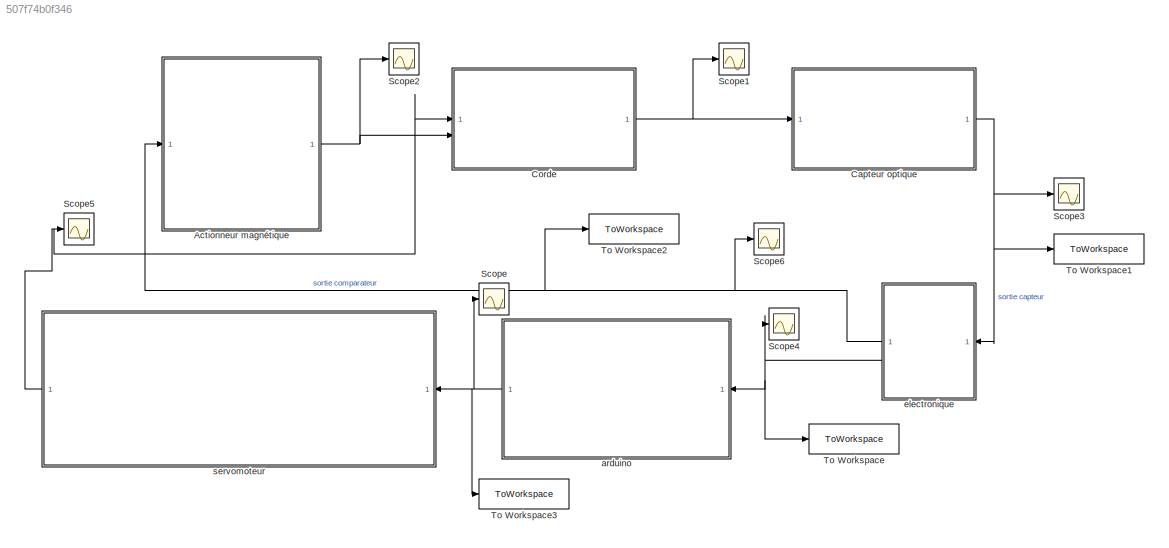
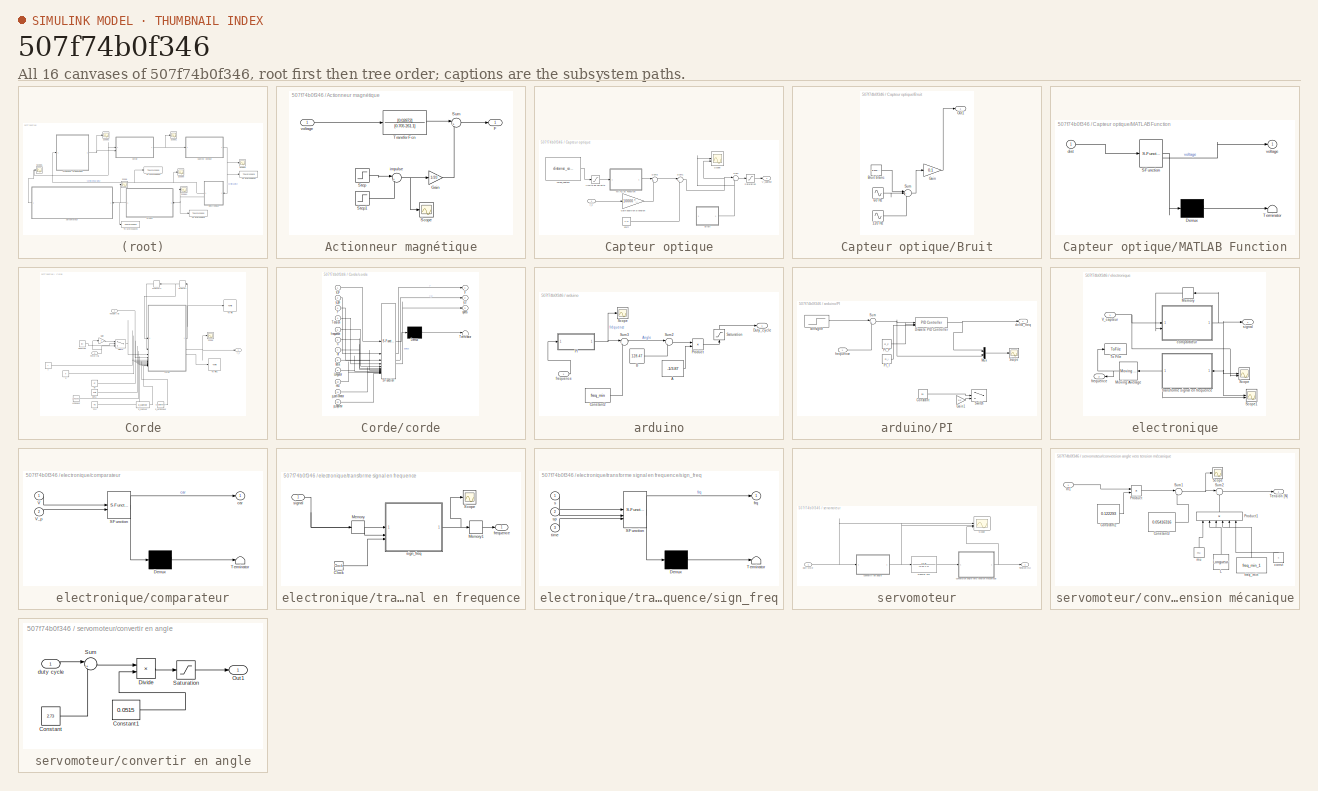
[diagram: thumbnail index - all 16 canvases of the model, root first then tree order]
MODEL slx_507f74b0f346
KIND model
CONFIG AbsTol = auto
CONFIG EnableMultiTasking = off
CONFIG FixedStep = dt
CONFIG MaxStep = auto
CONFIG MinStep = auto
CONFIG RelTol = 1e-3
CONFIG SampleTimeConstraint = Unconstrained
CONFIG SolverName = ode4
CONFIG StartTime = 0.0
CONFIG StopTime = 10
WORKSPACE source: external: MATLAB File  (data not in archive)
BLOCK [SubSystem] Actionneur magnétique
BLOCK [Outport] Actionneur magnétique/F
BLOCK [Gain] Actionneur magnétique/Gain
  Gain = 1/20
BLOCK [Scope] Actionneur magnétique/Scope
  Floating = off
  NumInputPorts = 1
  ScopeSpecificationString = Simulink.scopes.TimeScopeBlockCfg('CurrentConfiguration', extmgr.ConfigurationSet(extmgr.Configuration('Core','General UI',true),extmgr.Configuration('Core','Source UI',true),extmgr.Configuration('Sources','WiredSimulink',true,'DataLoggingVariableName','ScopeData2'),extmgr.Configuration('Visuals','Time Domain',true,'SerializedDisplays',{struct('MinYLimReal','-0.125','MaxYLimReal','1.125','YLabelRe...<+1354ch>
BLOCK [Step] Actionneur magnétique/Step
  SampleTime = 0
  Time = 3*dt
BLOCK [Step] Actionneur magnétique/Step1
  After = -1
  SampleTime = 0
  Time = 6*dt
BLOCK [Sum] Actionneur magnétique/Sum
  Inputs = |++
BLOCK [TransferFcn] Actionneur magnétique/Transfer Fcn
  Denominator = [0.705 261.1]
  Numerator = [0.02872]
BLOCK [Sum] Actionneur magnétique/impulse
  Inputs = |++
BLOCK [Inport] Actionneur magnétique/voltage
BLOCK [SubSystem] Capteur optique
BLOCK [SubSystem] Capteur optique/Bruit
BLOCK [Sin] Capteur optique/Bruit/120 Hz
  Frequency = 120
  SampleTime = 0
BLOCK [Sin] Capteur optique/Bruit/60 Hz
  Frequency = 60
  SampleTime = 0
BLOCK [Reference] Capteur optique/Bruit/Bruit blanc  REF=simulink/Sources/Band-Limited
White Noise
  SourceBlock = simulink/Sources/Band-Limited\nWhite Noise
  SourceType = Band-Limited White Noise.
BLOCK [Gain] Capteur optique/Bruit/Gain
  Gain = 0.1
BLOCK [Outport] Capteur optique/Bruit/Out1
BLOCK [Sum] Capteur optique/Bruit/Sum
  Inputs = |+++
BLOCK [Gain] Capteur optique/Gain position a tension
  Gain = 10000 * 2.5/(9.1) * 10^3
BLOCK [SubSystem] Capteur optique/MATLAB Function
  ErrorFcn = Stateflow.Translate.translate
  LibrarySourceBlock = simulink/User-Defined\nFunctions/MATLAB Function
  PermitHierarchicalResolution = ExplicitOnly
  SFBlockType = MATLAB Function
  TreatAsAtomicUnit = on
BLOCK [Demux] Capteur optique/MATLAB Function/ Demux 
  Outputs = 1
BLOCK [S-Function] Capteur optique/MATLAB Function/ SFunction 
  EnableBusSupport = on
  FunctionName = sf_sfun
  PortCounts = [1 2]
  SFcnIsStateOwnerBlock = off
  SFunctionDeploymentMode = off
  Tag = Stateflow S-Function 1
BLOCK [Terminator] Capteur optique/MATLAB Function/ Terminator 
BLOCK [Inport] Capteur optique/MATLAB Function/dist
BLOCK [Outport] Capteur optique/MATLAB Function/voltage
BLOCK [Saturate] Capteur optique/Saturation
  LowerLimit = 0
  UpperLimit = 5
BLOCK [Scope] Capteur optique/Scope
  Floating = off
  NumInputPorts = 2
  ScopeSpecificationString = Simulink.scopes.TimeScopeBlockCfg('CurrentConfiguration', extmgr.ConfigurationSet(extmgr.Configuration('Core','General UI',true),extmgr.Configuration('Core','Source UI',true),extmgr.Configuration('Sources','WiredSimulink',true,'DataLoggingVariableName','ScopeData4'),extmgr.Configuration('Visuals','Time Domain',true,'SerializedDisplays',{struct('MinYLimReal','-0.76601','MaxYLimReal','2.86289','YLab...<+1371ch>
BLOCK [Sum] Capteur optique/Sum
  Inputs = |++
BLOCK [Sum] Capteur optique/Sum1
  Inputs = |++
BLOCK [Sum] Capteur optique/Sum2
  Inputs = |++
BLOCK [Outport] Capteur optique/V_capteur
BLOCK [Constant] Capteur optique/corde_capteur
  Value = distance_corde_capteur
BLOCK [Saturate] Capteur optique/limite de validité
  LowerLimit = 0.0015748
  UpperLimit = 0.007874
BLOCK [Constant] Capteur optique/shift
  Value = 2.47
BLOCK [Inport] Capteur optique/y_c
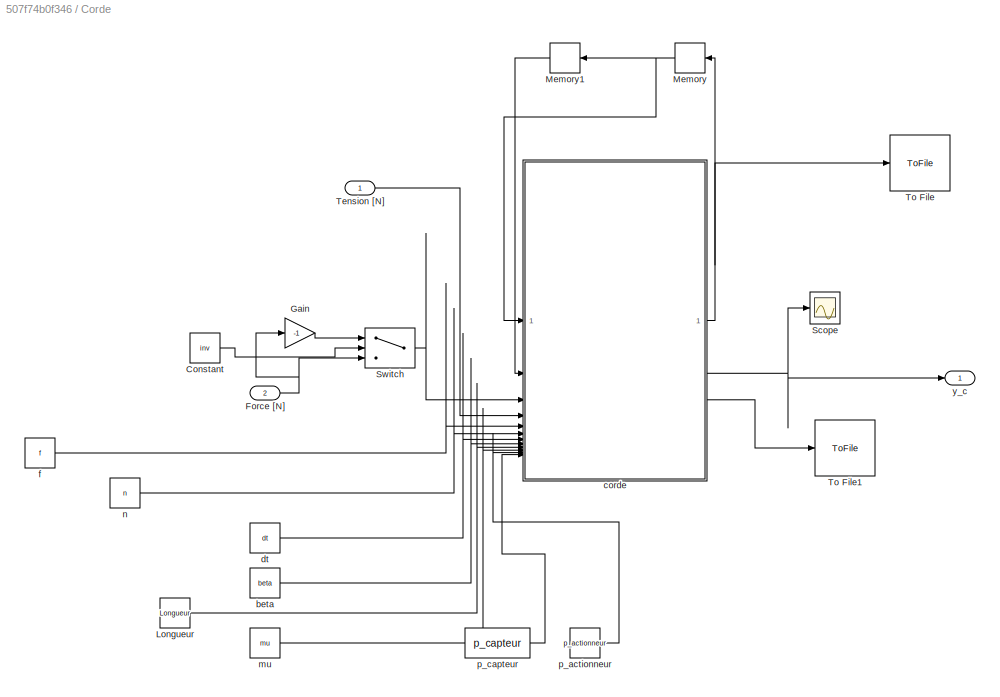
BLOCK [SubSystem] Corde
BLOCK [Constant] Corde/Constant
  Value = inv
BLOCK [Inport] Corde/Force [N]
  Port = 2
BLOCK [Gain] Corde/Gain
  Gain = -1
BLOCK [Constant] Corde/Longueur
  Value = Longueur
BLOCK [Memory] Corde/Memory
BLOCK [Memory] Corde/Memory1
BLOCK [Scope] Corde/Scope
  Floating = off
  NumInputPorts = 1
  ScopeSpecificationString = Simulink.scopes.TimeScopeBlockCfg('CurrentConfiguration', extmgr.ConfigurationSet(extmgr.Configuration('Core','General UI',true),extmgr.Configuration('Core','Source UI',true),extmgr.Configuration('Sources','WiredSimulink',true),extmgr.Configuration('Visuals','Time Domain',true,'SerializedDisplays',{struct('MinYLimReal','-0.0000014','MaxYLimReal','0.0000014','YLabelReal','','MinYLimMag','0.0000000'...<+1422ch>
BLOCK [Switch] Corde/Switch
  Criteria = u2 > Threshold
  InputSameDT = off
  SaturateOnIntegerOverflow = off
BLOCK [Inport] Corde/Tension [N]
BLOCK [ToFile] Corde/To File
  Filename = donneescordes.mat
  SaveFormat = Timeseries
BLOCK [ToFile] Corde/To File1
  Filename = specs.mat
  MatrixName = specs
BLOCK [Constant] Corde/beta
  Value = beta
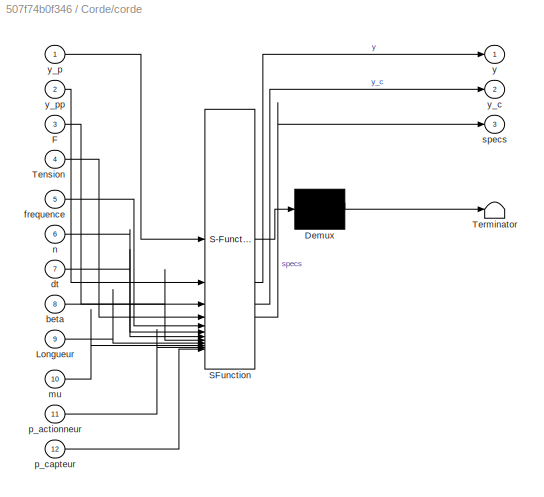
BLOCK [SubSystem] Corde/corde
  ErrorFcn = Stateflow.Translate.translate
  LibrarySourceBlock = simulink/User-Defined\nFunctions/MATLAB Function
  PermitHierarchicalResolution = ExplicitOnly
  SFBlockType = MATLAB Function
  TreatAsAtomicUnit = on
BLOCK [Demux] Corde/corde/ Demux 
  Outputs = 1
BLOCK [S-Function] Corde/corde/ SFunction 
  EnableBusSupport = on
  FunctionName = sf_sfun
  PortCounts = [12 4]
  SFcnIsStateOwnerBlock = off
  SFunctionDeploymentMode = off
  Tag = Stateflow S-Function 2
BLOCK [Terminator] Corde/corde/ Terminator 
BLOCK [Inport] Corde/corde/F
  Port = 3
BLOCK [Inport] Corde/corde/Longueur
  Port = 9
BLOCK [Inport] Corde/corde/Tension
  Port = 4
BLOCK [Inport] Corde/corde/beta
  Port = 8
BLOCK [Inport] Corde/corde/dt
  Port = 7
BLOCK [Inport] Corde/corde/frequence
  Port = 5
BLOCK [Inport] Corde/corde/mu
  Port = 10
BLOCK [Inport] Corde/corde/n
  Port = 6
BLOCK [Inport] Corde/corde/p_actionneur
  Port = 11
BLOCK [Inport] Corde/corde/p_capteur
  Port = 12
BLOCK [Outport] Corde/corde/specs
  Port = 3
BLOCK [Outport] Corde/corde/y
BLOCK [Outport] Corde/corde/y_c
  Port = 2
BLOCK [Inport] Corde/corde/y_p
BLOCK [Inport] Corde/corde/y_pp
  Port = 2
BLOCK [Constant] Corde/dt
  Value = dt
BLOCK [Constant] Corde/f
  Value = f
BLOCK [Constant] Corde/mu
  Value = mu
BLOCK [Constant] Corde/n
  Value = n
BLOCK [Constant] Corde/p_actionneur
  Value = p_actionneur
BLOCK [Constant] Corde/p_capteur
  Value = p_capteur
BLOCK [Outport] Corde/y_c
BLOCK [Scope] Scope
  Floating = off
  NumInputPorts = 1
  ScopeSpecificationString = Simulink.scopes.TimeScopeBlockCfg('CurrentConfiguration', extmgr.ConfigurationSet(extmgr.Configuration('Core','General UI',true),extmgr.Configuration('Core','Source UI',true),extmgr.Configuration('Sources','WiredSimulink',true,'DataLoggingVariableName','ScopeData2'),extmgr.Configuration('Visuals','Time Domain',true,'SerializedDisplays',{struct('MinYLimReal','-1.79606','MaxYLimReal','7.0229','YLabe...<+1433ch>
BLOCK [Scope] Scope1
  Floating = off
  NumInputPorts = 1
  ScopeSpecificationString = Simulink.scopes.TimeScopeBlockCfg('CurrentConfiguration', extmgr.ConfigurationSet(extmgr.Configuration('Core','General UI',true),extmgr.Configuration('Core','Source UI',true),extmgr.Configuration('Sources','WiredSimulink',true,'DataLoggingVariableName','ScopeData3'),extmgr.Configuration('Visuals','Time Domain',true,'SerializedDisplays',{struct('MinYLimReal','-0.00000009','MaxYLimReal','0.00000009'...<+1437ch>
BLOCK [Scope] Scope2
  Floating = off
  NumInputPorts = 1
  ScopeSpecificationString = Simulink.scopes.TimeScopeBlockCfg('CurrentConfiguration', extmgr.ConfigurationSet(extmgr.Configuration('Core','General UI',true),extmgr.Configuration('Core','Source UI',true),extmgr.Configuration('Sources','WiredSimulink',true,'DataLoggingVariableName','ScopeData1'),extmgr.Configuration('Visuals','Time Domain',true,'SerializedDisplays',{struct('MinYLimReal','0.04573','MaxYLimReal','0.05371','YLabe...<+1427ch>
BLOCK [Scope] Scope3
  Floating = off
  NumInputPorts = 1
  ScopeSpecificationString = Simulink.scopes.TimeScopeBlockCfg('CurrentConfiguration', extmgr.ConfigurationSet(extmgr.Configuration('Core','General UI',true),extmgr.Configuration('Core','Source UI',true),extmgr.Configuration('Sources','WiredSimulink',true,'DataLoggingVariableName','ScopeData3'),extmgr.Configuration('Visuals','Time Domain',true,'SerializedDisplays',{struct('MinYLimReal','-0.625','MaxYLimReal','5.625','YLabelRe...<+1410ch>
BLOCK [Scope] Scope4
  Floating = off
  NumInputPorts = 1
  ScopeSpecificationString = Simulink.scopes.TimeScopeBlockCfg('CurrentConfiguration', extmgr.ConfigurationSet(extmgr.Configuration('Core','General UI',true),extmgr.Configuration('Core','Source UI',true),extmgr.Configuration('Sources','WiredSimulink',true,'DataLoggingVariableName','ScopeData3'),extmgr.Configuration('Visuals','Time Domain',true,'SerializedDisplays',{struct('MinYLimReal','127.08869','MaxYLimReal','190.70012','Y...<+1487ch>
BLOCK [Scope] Scope5
  Floating = off
  NumInputPorts = 1
  ScopeSpecificationString = Simulink.scopes.TimeScopeBlockCfg('CurrentConfiguration', extmgr.ConfigurationSet(extmgr.Configuration('Core','General UI',true),extmgr.Configuration('Core','Source UI',true),extmgr.Configuration('Sources','WiredSimulink',true,'DataLoggingVariableName','ScopeData5'),extmgr.Configuration('Visuals','Time Domain',true,'SerializedDisplays',{struct('MinYLimReal','-0.31404','MaxYLimReal','2.28469','YLab...<+1471ch>
BLOCK [Scope] Scope6
  Floating = off
  NumInputPorts = 1
  ScopeSpecificationString = Simulink.scopes.TimeScopeBlockCfg('CurrentConfiguration', extmgr.ConfigurationSet(extmgr.Configuration('Core','General UI',true),extmgr.Configuration('Core','Source UI',true),extmgr.Configuration('Sources','WiredSimulink',true,'DataLoggingVariableName','ScopeData1'),extmgr.Configuration('Visuals','Time Domain',true,'SerializedDisplays',{struct('MinYLimReal','-0.625','MaxYLimReal','5.625','YLabelRe...<+1466ch>
BLOCK [ToWorkspace] To Workspace
  FixptAsFi = on
  MaxDataPoints = inf
  SampleTime = -1
  Save2DSignal = 2-D array (concatenate along first dimension)
  SaveFormat = Structure
  VariableName = simout
BLOCK [ToWorkspace] To Workspace1
  FixptAsFi = on
  MaxDataPoints = inf
  SampleTime = -1
  Save2DSignal = 2-D array (concatenate along first dimension)
  VariableName = simout1
BLOCK [ToWorkspace] To Workspace2
  FixptAsFi = on
  MaxDataPoints = inf
  SampleTime = -1
  Save2DSignal = 2-D array (concatenate along first dimension)
  VariableName = simout2
BLOCK [ToWorkspace] To Workspace3
  FixptAsFi = on
  MaxDataPoints = inf
  SampleTime = -1
  Save2DSignal = 2-D array (concatenate along first dimension)
  VariableName = simout3
BLOCK [SubSystem] arduino
BLOCK [Constant] arduino/A
  Value = -1/3.87
BLOCK [Constant] arduino/B
  Value = 128.47
BLOCK [Constant] arduino/Constant2
  Value = freq_min
BLOCK [Outport] arduino/Duty_cycle
BLOCK [SubSystem] arduino/PI
BLOCK [Constant] arduino/PI/Constant
  Commented = on
  Value = inv
BLOCK [Reference] arduino/PI/Discrete PID Controller  REF=slpidlib/PID Controller
  LibrarySourceBlock = simulink/Discrete/Discrete PID Controller
  SourceBlock = slpidlib/PID Controller
  SourceType = PID 1dof
BLOCK [Gain] arduino/PI/Gain1
  Commented = on
  Gain = 1/2
BLOCK [Mux] arduino/PI/Mux
  DisplayOption = bar
  Inputs = 2
BLOCK [Constant] arduino/PI/PI_I
  Value = PI_I
BLOCK [Constant] arduino/PI/PI_P
  Value = PI_P
BLOCK [Scope] arduino/PI/Scope
  Floating = off
  NumInputPorts = 1
  ScopeSpecificationString = Simulink.scopes.TimeScopeBlockCfg('CurrentConfiguration', extmgr.ConfigurationSet(extmgr.Configuration('Core','General UI',true),extmgr.Configuration('Core','Source UI',true),extmgr.Configuration('Sources','WiredSimulink',true,'DataLoggingVariableName','ScopeData4'),extmgr.Configuration('Visuals','Time Domain',true,'SerializedDisplays',{struct('MinYLimReal','-19.34942','MaxYLimReal','17.85777','YL...<+1493ch>
BLOCK [Sum] arduino/PI/Sum
  Inputs = |+-
BLOCK [Switch] arduino/PI/Switch
  Commented = on
  Criteria = u2 > Threshold
  InputSameDT = off
  SaturateOnIntegerOverflow = off
BLOCK [Step] arduino/PI/consigne
  After = f
  SampleTime = 10
  Time = 0
BLOCK [Outport] arduino/PI/delta_freq
BLOCK [Inport] arduino/PI/frequence
BLOCK [Product] arduino/Product
BLOCK [Saturate] arduino/Saturation
  LowerLimit = 2.72
  NameLocation = right
  UpperLimit = 11.79
BLOCK [Scope] arduino/Scope
  Floating = off
  NumInputPorts = 1
  ScopeSpecificationString = Simulink.scopes.TimeScopeBlockCfg('CurrentConfiguration', extmgr.ConfigurationSet(extmgr.Configuration('Core','General UI',true),extmgr.Configuration('Core','Source UI',true),extmgr.Configuration('Sources','WiredSimulink',true,'DataLoggingVariableName','ScopeData1'),extmgr.Configuration('Visuals','Time Domain',true,'SerializedDisplays',{struct('MinYLimReal','-1125.00000','MaxYLimReal','125.00000',...<+1413ch>
BLOCK [Sum] arduino/Sum2
  Inputs = |+-
BLOCK [Sum] arduino/Sum3
  Inputs = |++
BLOCK [Inport] arduino/frequence
BLOCK [SubSystem] electronique
BLOCK [Memory] electronique/Memory
BLOCK [Reference] electronique/Moving Average  REF=dspstat3/Moving
Average
  SourceBlock = dspstat3/Moving\nAverage
  SourceType = dsp.simulink.MovingAverage
BLOCK [Scope] electronique/Scope
  Floating = off
  NumInputPorts = 2
  ScopeSpecificationString = Simulink.scopes.TimeScopeBlockCfg('CurrentConfiguration', extmgr.ConfigurationSet(extmgr.Configuration('Core','General UI',true),extmgr.Configuration('Core','Source UI',true),extmgr.Configuration('Sources','WiredSimulink',true,'DataLoggingVariableName','ScopeData1'),extmgr.Configuration('Visuals','Time Domain',true,'SerializedDisplays',{struct('MinYLimReal','-0.625','MaxYLimReal','5.625','YLabelRe...<+1425ch>
BLOCK [Scope] electronique/Scope1
  Floating = off
  NumInputPorts = 2
  ScopeSpecificationString = Simulink.scopes.TimeScopeBlockCfg('CurrentConfiguration', extmgr.ConfigurationSet(extmgr.Configuration('Core','General UI',true),extmgr.Configuration('Core','Source UI',true),extmgr.Configuration('Sources','WiredSimulink',true,'DataLoggingVariableName','ScopeData2'),extmgr.Configuration('Visuals','Time Domain',true,'SerializedDisplays',{struct('MinYLimReal','-29.41176','MaxYLimReal','264.70588','Y...<+1513ch>
BLOCK [ToFile] electronique/To File
  Filename = freq_read.mat
  MatrixName = freq
BLOCK [Inport] electronique/V_capteur
BLOCK [SubSystem] electronique/comparateur
  ErrorFcn = Stateflow.Translate.translate
  LibrarySourceBlock = simulink/User-Defined\nFunctions/MATLAB Function
  PermitHierarchicalResolution = ExplicitOnly
  SFBlockType = MATLAB Function
  TreatAsAtomicUnit = on
BLOCK [Demux] electronique/comparateur/ Demux 
  Outputs = 1
BLOCK [S-Function] electronique/comparateur/ SFunction 
  EnableBusSupport = on
  FunctionName = sf_sfun
  PortCounts = [2 2]
  SFcnIsStateOwnerBlock = off
  SFunctionDeploymentMode = off
  Tag = Stateflow S-Function 3
BLOCK [Terminator] electronique/comparateur/ Terminator 
BLOCK [Inport] electronique/comparateur/V
BLOCK [Inport] electronique/comparateur/V_p
  Port = 2
BLOCK [Outport] electronique/comparateur/car
BLOCK [Outport] electronique/frequence
  Port = 2
BLOCK [Outport] electronique/signal
BLOCK [SubSystem] electronique/transforme signal en frequence
BLOCK [Clock] electronique/transforme signal en frequence/Clock
BLOCK [Memory] electronique/transforme signal en frequence/Memory
  InitialCondition = 5
BLOCK [Memory] electronique/transforme signal en frequence/Memory1
  InitialCondition = 100
BLOCK [Scope] electronique/transforme signal en frequence/Scope
  Floating = off
  NumInputPorts = 1
  ScopeSpecificationString = Simulink.scopes.TimeScopeBlockCfg('CurrentConfiguration', extmgr.ConfigurationSet(extmgr.Configuration('Core','General UI',true),extmgr.Configuration('Core','Source UI',true),extmgr.Configuration('Sources','WiredSimulink',true,'DataLoggingVariableName','ScopeData2'),extmgr.Configuration('Visuals','Time Domain',true,'SerializedDisplays',{struct('MinYLimReal','7.47348','MaxYLimReal','260.60752','YLa...<+1474ch>
BLOCK [Outport] electronique/transforme signal en frequence/frequence
BLOCK [SubSystem] electronique/transforme signal en frequence/sign_freq
  ErrorFcn = Stateflow.Translate.translate
  LibrarySourceBlock = simulink/User-Defined\nFunctions/MATLAB Function
  PermitHierarchicalResolution = ExplicitOnly
  SFBlockType = MATLAB Function
  TreatAsAtomicUnit = on
BLOCK [Demux] electronique/transforme signal en frequence/sign_freq/ Demux 
  Outputs = 1
BLOCK [S-Function] electronique/transforme signal en frequence/sign_freq/ SFunction 
  EnableBusSupport = on
  FunctionName = sf_sfun
  PortCounts = [3 2]
  SFcnIsStateOwnerBlock = off
  SFunctionDeploymentMode = off
  Tag = Stateflow S-Function 4
BLOCK [Terminator] electronique/transforme signal en frequence/sign_freq/ Terminator 
BLOCK [Outport] electronique/transforme signal en frequence/sign_freq/frq
BLOCK [Inport] electronique/transforme signal en frequence/sign_freq/s
BLOCK [Inport] electronique/transforme signal en frequence/sign_freq/sp
  Port = 2
BLOCK [Inport] electronique/transforme signal en frequence/sign_freq/time
  Port = 3
BLOCK [Inport] electronique/transforme signal en frequence/signal
BLOCK [SubSystem] servomoteur
BLOCK [Scope] servomoteur/Scope
  Floating = off
  NumInputPorts = 3
  ScopeSpecificationString = Simulink.scopes.TimeScopeBlockCfg('CurrentConfiguration', extmgr.ConfigurationSet(extmgr.Configuration('Core','General UI',true),extmgr.Configuration('Core','Source UI',true),extmgr.Configuration('Sources','WiredSimulink',true,'DataLoggingVariableName','ScopeData1'),extmgr.Configuration('Visuals','Time Domain',true,'SerializedDisplays',{struct('MinYLimReal','-21.25','MaxYLimReal','191.25','YLabelR...<+1963ch>
BLOCK [Outport] servomoteur/Tension [N]
BLOCK [TransferFcn] servomoteur/Transfer Fcn
  Denominator = [0.64 1.1]
  Numerator = [1.1]
BLOCK [SubSystem] servomoteur/conversion angle vers tension mécanique
BLOCK [Constant] servomoteur/conversion angle vers tension mécanique/Constant2
  Value = 0.122293
BLOCK [Constant] servomoteur/conversion angle vers tension mécanique/Constant3
  Value = 0.05416316
BLOCK [Inport] servomoteur/conversion angle vers tension mécanique/In1
BLOCK [Constant] servomoteur/conversion angle vers tension mécanique/L
  NameLocation = right
  Value = Longueur
BLOCK [Product] servomoteur/conversion angle vers tension mécanique/Product
BLOCK [Product] servomoteur/conversion angle vers tension mécanique/Product1
  Inputs = 6
  NameLocation = right
BLOCK [Scope] servomoteur/conversion angle vers tension mécanique/Scope
  Floating = off
  NumInputPorts = 1
  ScopeSpecificationString = Simulink.scopes.TimeScopeBlockCfg('CurrentConfiguration', extmgr.ConfigurationSet(extmgr.Configuration('Core','General UI',true),extmgr.Configuration('Core','Source UI',true),extmgr.Configuration('Sources','WiredSimulink',true,'DataLoggingVariableName','ScopeData1'),extmgr.Configuration('Visuals','Time Domain',true,'SerializedDisplays',{struct('MinYLimReal','-0.32576','MaxYLimReal','2.36647','YLab...<+1363ch>
BLOCK [Sum] servomoteur/conversion angle vers tension mécanique/Sum1
  Inputs = |+-
BLOCK [Sum] servomoteur/conversion angle vers tension mécanique/Sum2
  Inputs = |++
BLOCK [Outport] servomoteur/conversion angle vers tension mécanique/Tension [N]
BLOCK [Constant] servomoteur/conversion angle vers tension mécanique/const
  NameLocation = right
  Value = 4
BLOCK [Constant] servomoteur/conversion angle vers tension mécanique/freq_min
  NameLocation = right
  Value = freq_min_1
BLOCK [Constant] servomoteur/conversion angle vers tension mécanique/mu
  NameLocation = right
  Value = mu
BLOCK [SubSystem] servomoteur/convertir en angle
BLOCK [Constant] servomoteur/convertir en angle/Constant
  Value = 2.73
BLOCK [Constant] servomoteur/convertir en angle/Constant1
  Value = 0.0515
BLOCK [Product] servomoteur/convertir en angle/Divide
  Inputs = */
BLOCK [Outport] servomoteur/convertir en angle/Out1
BLOCK [Saturate] servomoteur/convertir en angle/Saturation
  LowerLimit = 0
  UpperLimit = 170
BLOCK [Sum] servomoteur/convertir en angle/Sum
  Inputs = |+-
BLOCK [Inport] servomoteur/convertir en angle/duty cycle
BLOCK [Inport] servomoteur/duty cycle
LINE Actionneur magnétique/Gain:1 -> Actionneur magnétique/Sum:2
LINE Actionneur magnétique/Step1:1 -> Actionneur magnétique/impulse:2
LINE Actionneur magnétique/Step:1 -> Actionneur magnétique/impulse:1
LINE Actionneur magnétique/Sum:1 -> Actionneur magnétique/F:1
LINE Actionneur magnétique/Transfer Fcn:1 -> Actionneur magnétique/Sum:1
NET Actionneur magnétique/impulse:1 -> Actionneur magnétique/Gain:1, Actionneur magnétique/Scope:1
LINE Actionneur magnétique/voltage:1 -> Actionneur magnétique/Transfer Fcn:1
NET Actionneur magnétique:1 -> Corde:2, Scope2:1
LINE Capteur optique/Bruit/120 Hz:1 -> Capteur optique/Bruit/Sum:3
LINE Capteur optique/Bruit/60 Hz:1 -> Capteur optique/Bruit/Sum:2
LINE Capteur optique/Bruit/Bruit blanc:1 -> Capteur optique/Bruit/Sum:1
LINE Capteur optique/Bruit/Gain:1 -> Capteur optique/Bruit/Out1:1
LINE Capteur optique/Bruit/Sum:1 -> Capteur optique/Bruit/Gain:1
NET Capteur optique/Bruit:1 -> Capteur optique/Scope:1, Capteur optique/Sum:2
LINE Capteur optique/Gain position a tension:1 -> Capteur optique/Sum2:2
LINE Capteur optique/MATLAB Function:1 -> Capteur optique/Sum2:1
LINE Capteur optique/Saturation:1 -> Capteur optique/V_capteur:1
NET Capteur optique/Sum1:1 -> Capteur optique/Scope:2, Capteur optique/Sum:1
LINE Capteur optique/Sum2:1 -> Capteur optique/Sum1:1
LINE Capteur optique/Sum:1 -> Capteur optique/Saturation:1
LINE Capteur optique/corde_capteur:1 -> Capteur optique/limite de validité:1
LINE Capteur optique/limite de validité:1 -> Capteur optique/MATLAB Function:1
LINE Capteur optique/shift:1 -> Capteur optique/Sum1:2
LINE Capteur optique/y_c:1 -> Capteur optique/Gain position a tension:1
NET Capteur optique:1 -> Scope3:1, To Workspace1:1, electronique:1
LINE Corde/Constant:1 -> Corde/Switch:2
NET Corde/Force [N]:1 -> Corde/Gain:1, Corde/Switch:3
LINE Corde/Gain:1 -> Corde/Switch:1
LINE Corde/Longueur:1 -> Corde/corde:9
LINE Corde/Memory1:1 -> Corde/corde:2
NET Corde/Memory:1 -> Corde/Memory1:1, Corde/corde:1
LINE Corde/Switch:1 -> Corde/corde:3
LINE Corde/Tension [N]:1 -> Corde/corde:4
LINE Corde/beta:1 -> Corde/corde:8
NET Corde/corde:1 -> Corde/Memory:1, Corde/To File:1
NET Corde/corde:2 -> Corde/Scope:1, Corde/y_c:1
LINE Corde/corde:3 -> Corde/To File1:1
LINE Corde/dt:1 -> Corde/corde:7
LINE Corde/f:1 -> Corde/corde:5
LINE Corde/mu:1 -> Corde/corde:10
LINE Corde/n:1 -> Corde/corde:6
LINE Corde/p_actionneur:1 -> Corde/corde:11
LINE Corde/p_capteur:1 -> Corde/corde:12
NET Corde:1 -> Capteur optique:1, Scope1:1
LINE arduino/A:1 -> arduino/Product:2
LINE arduino/B:1 -> arduino/Sum2:2
LINE arduino/Constant2:1 -> arduino/Sum3:2
LINE arduino/PI/Constant:1 -> arduino/PI/Switch:2
NET arduino/PI/Discrete PID Controller:1 -> arduino/PI/Mux:1, arduino/PI/delta_freq:1
LINE arduino/PI/Gain1:1 -> arduino/PI/Switch:3
LINE arduino/PI/Mux:1 -> arduino/PI/Scope:1
LINE arduino/PI/PI_I:1 -> arduino/PI/Discrete PID Controller:3
LINE arduino/PI/PI_P:1 -> arduino/PI/Discrete PID Controller:2
NET arduino/PI/Sum:1 -> arduino/PI/Discrete PID Controller:1, arduino/PI/Mux:2
LINE arduino/PI/consigne:1 -> arduino/PI/Sum:1
LINE arduino/PI/frequence:1 -> arduino/PI/Sum:2
NET arduino/PI:1 -> arduino/Scope:1, arduino/Sum3:1
LINE arduino/Product:1 -> arduino/Saturation:1
LINE arduino/Saturation:1 -> arduino/Duty_cycle:1
LINE arduino/Sum2:1 -> arduino/Product:1
LINE arduino/Sum3:1 -> arduino/Sum2:1
LINE arduino/frequence:1 -> arduino/PI:1
NET arduino:1 -> Scope:1, To Workspace3:1, servomoteur:1
LINE electronique/Memory:1 -> electronique/comparateur:2
NET electronique/Moving Average:1 -> electronique/To File:1, electronique/frequence:1
NET electronique/V_capteur:1 -> electronique/Scope:2, electronique/comparateur:1
NET electronique/comparateur:1 -> electronique/Memory:1, electronique/Scope1:1, electronique/Scope:1, electronique/signal:1, electronique/transforme signal en frequence:1
LINE electronique/transforme signal en frequence/Clock:1 -> electronique/transforme signal en frequence/sign_freq:3
LINE electronique/transforme signal en frequence/Memory1:1 -> electronique/transforme signal en frequence/frequence:1
LINE electronique/transforme signal en frequence/Memory:1 -> electronique/transforme signal en frequence/sign_freq:2
NET electronique/transforme signal en frequence/sign_freq:1 -> electronique/transforme signal en frequence/Memory1:1, electronique/transforme signal en frequence/Scope:1
NET electronique/transforme signal en frequence/signal:1 -> electronique/transforme signal en frequence/Memory:1, electronique/transforme signal en frequence/sign_freq:1
NET electronique/transforme signal en frequence:1 -> electronique/Moving Average:1, electronique/Scope1:2
NET electronique:1 -> Actionneur magnétique:1, Scope6:1, To Workspace2:1
NET electronique:2 -> Scope4:1, To Workspace:1, arduino:1
LINE servomoteur/Transfer Fcn:1 -> servomoteur/conversion angle vers tension mécanique:1
LINE servomoteur/conversion angle vers tension mécanique/Constant2:1 -> servomoteur/conversion angle vers tension mécanique/Product:2
LINE servomoteur/conversion angle vers tension mécanique/Constant3:1 -> servomoteur/conversion angle vers tension mécanique/Sum1:2
LINE servomoteur/conversion angle vers tension mécanique/In1:1 -> servomoteur/conversion angle vers tension mécanique/Product:1
NET servomoteur/conversion angle vers tension mécanique/L:1 -> servomoteur/conversion angle vers tension mécanique/Product1:2, servomoteur/conversion angle vers tension mécanique/Product1:3
LINE servomoteur/conversion angle vers tension mécanique/Product1:1 -> servomoteur/conversion angle vers tension mécanique/Sum2:2
LINE servomoteur/conversion angle vers tension mécanique/Product:1 -> servomoteur/conversion angle vers tension mécanique/Sum1:1
NET servomoteur/conversion angle vers tension mécanique/Sum1:1 -> servomoteur/conversion angle vers tension mécanique/Scope:1, servomoteur/conversion angle vers tension mécanique/Sum2:1
LINE servomoteur/conversion angle vers tension mécanique/Sum2:1 -> servomoteur/conversion angle vers tension mécanique/Tension [N]:1
LINE servomoteur/conversion angle vers tension mécanique/const:1 -> servomoteur/conversion angle vers tension mécanique/Product1:6
NET servomoteur/conversion angle vers tension mécanique/freq_min:1 -> servomoteur/conversion angle vers tension mécanique/Product1:4, servomoteur/conversion angle vers tension mécanique/Product1:5
LINE servomoteur/conversion angle vers tension mécanique/mu:1 -> servomoteur/conversion angle vers tension mécanique/Product1:1
NET servomoteur/conversion angle vers tension mécanique:1 -> servomoteur/Scope:3, servomoteur/Tension [N]:1
LINE servomoteur/convertir en angle/Constant1:1 -> servomoteur/convertir en angle/Divide:2
LINE servomoteur/convertir en angle/Constant:1 -> servomoteur/convertir en angle/Sum:2
LINE servomoteur/convertir en angle/Divide:1 -> servomoteur/convertir en angle/Saturation:1
LINE servomoteur/convertir en angle/Saturation:1 -> servomoteur/convertir en angle/Out1:1
LINE servomoteur/convertir en angle/Sum:1 -> servomoteur/convertir en angle/Divide:1
LINE servomoteur/convertir en angle/duty cycle:1 -> servomoteur/convertir en angle/Sum:1
NET servomoteur/convertir en angle:1 -> servomoteur/Scope:2, servomoteur/Transfer Fcn:1
NET servomoteur/duty cycle:1 -> servomoteur/Scope:1, servomoteur/convertir en angle:1
NET servomoteur:1 -> Corde:1, Scope5:1
note: NET lines group one-source signal fan-out (src -> all destinations, sorted); 1:1 wires keep LINE
CHART Capteur optique/MATLAB Function states=1 transitions=1
  STATE_LABEL 'eML_blk_kernel()'
  STATE_LABEL 'SCRIPT:\nfunction voltage = distance_vers_voltage(dist)\n    dist_pouce = dist*0.0393701;\n    voltage = exp(-120*(dist_pouce-0.17)^2);\nend'
CHART Corde/corde states=1 transitions=1
  STATE_LABEL 'eML_blk_kernel()'
  STATE_LABEL 'SCRIPT:\nfunction [y,y_c,specs] = corde(y_p, y_pp,F, Tension,frequence,n,dt,beta,Longueur,mu,p_actionneur,p_capteur)\n\n%dt = 0.000125;\n%beta = 3.2 * 10^(-3);\n%mu = 7.68 * 10^(-3); % [kg/m]\n%masse = 0.004405; % [kg s]\n%Longueur = 0.44; % [m]\n%mu = masse/Longueur; % \n%freq_min = 40;\n\n%T_init = freq_min_1^2 * 4 * Longueur^2 * mu;\n\n%if time < 1\n%    T = T_init;  % f^2 * 4 * Longueur^2 * mu;%/mode^2; %f_...<+518ch>'
CHART electronique/comparateur states=1 transitions=1
  STATE_LABEL 'eML_blk_kernel()'
  STATE_LABEL 'SCRIPT:\nfunction car = comparateur(V, V_p)\n\nif V <= 2\n    car = 0;\nelseif V >= 3\n    car = 5;\nelse\n    car = V_p;\nend\nend\n'
CHART electronique/transforme signal en frequence/sign_freq states=1 transitions=1
  STATE_LABEL 'eML_blk_kernel()'
  STATE_LABEL 'SCRIPT:\nfunction frq = sign_freq(s, sp, time)\npersistent up_timer;\npersistent down_timer;\n% section pour pas avoir de bug\nif isempty(up_timer)\n    up_timer = 0;\nend\nif isempty(down_timer)\n    down_timer = 0;\n    frq = 100;\nend\n% pas de bug\n\n\n\nif s == 5 && sp ~= 5 % debut du up\n    up_timer = time;\nelseif s == 0 && sp ~= 0 % debut du down\n    down_timer = time;\nend\nperiod = abs((up_timer-down_timer...<+23ch>'
CHART  states=0 transitions=0
CHART  states=0 transitions=0
CHART  states=0 transitions=0
CHART  states=0 transitions=0
